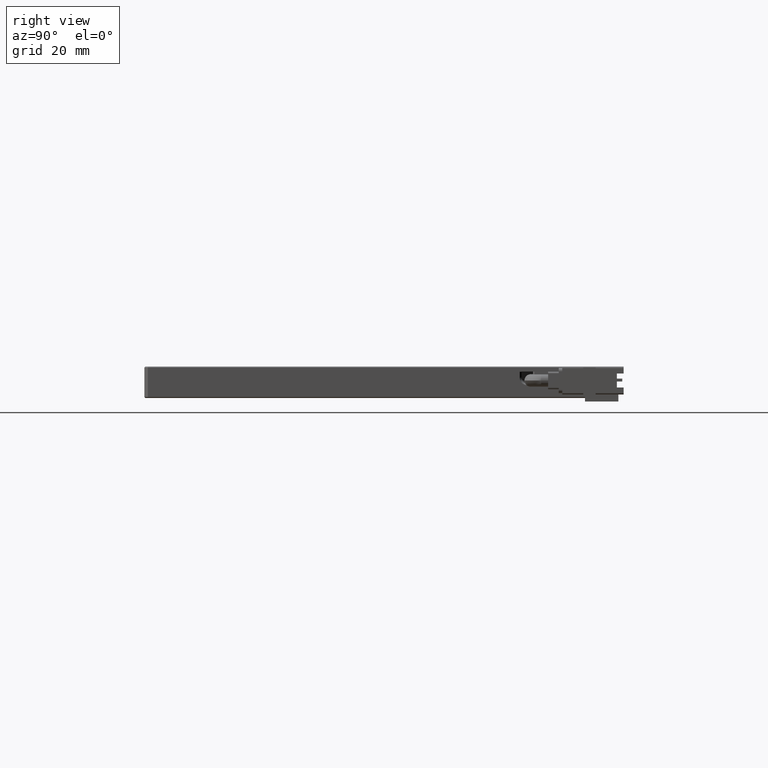
[diagram: clean part render]
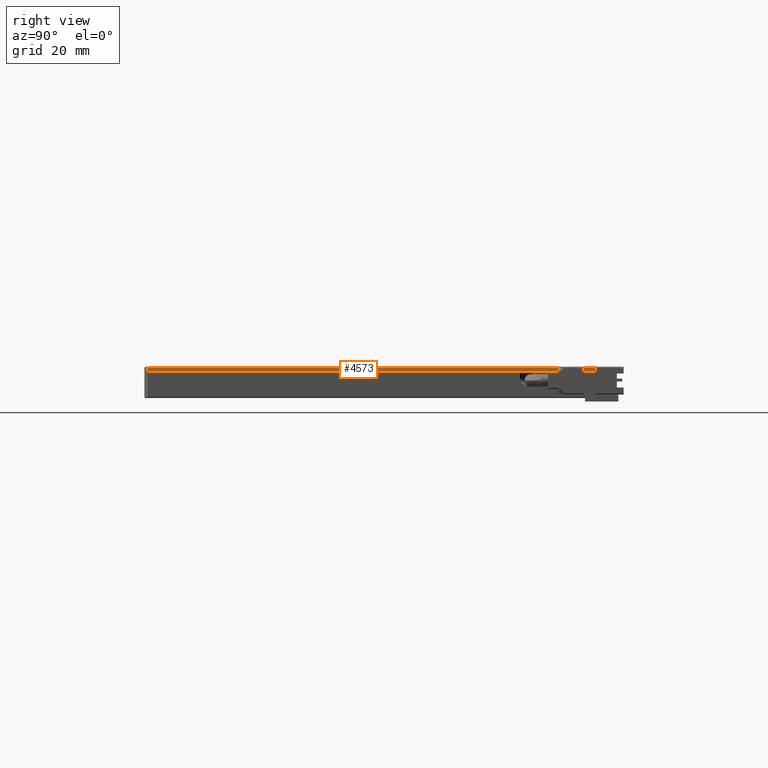
[diagram: same view with one face highlighted and labeled with its STEP entity id]
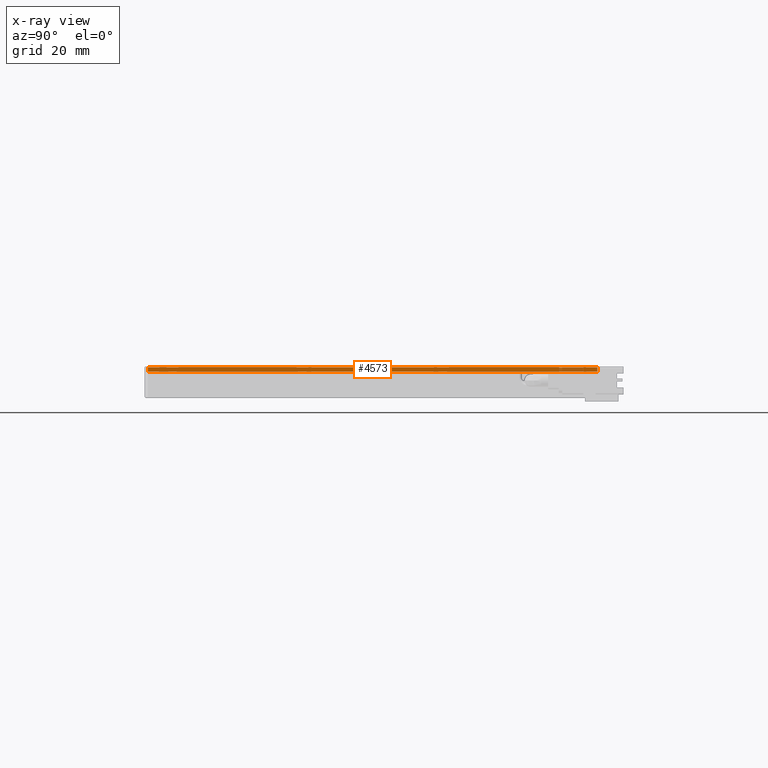
[diagram: x-ray of the same camera — body ghosted, the highlighted face saturated]
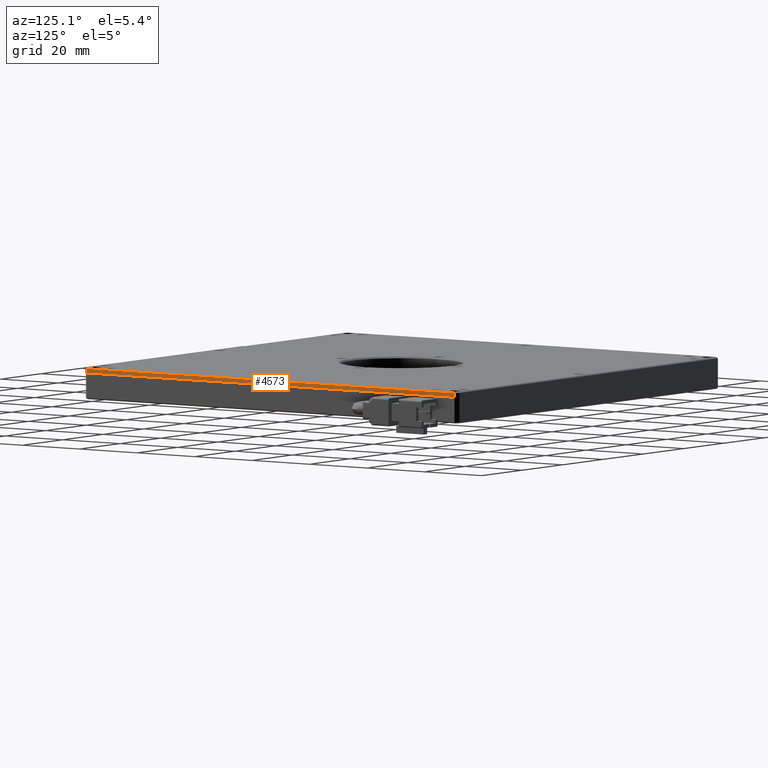
[diagram: same view with one face highlighted and labeled with its STEP entity id]
A machine part, right view. The second image highlights one B-rep face of the part: STEP entity #4573.
The next image is the same camera in x-ray: the body ghosted, the highlighted face saturated — about 6% of this face is hidden behind the body in this view.
A second angle (auxiliary view) of the same face is appended — the face is thin or edge-on in the first view.
In plain terms, the highlighted planar face has unit normal (-1, 0, 0).
Its self-contained STEP definition (entity closure, byte-faithful):
#678 = FACE_OUTER_BOUND ( 'NONE', #7213, .T. ) ;
#1564 = VECTOR ( 'NONE', #17438, 1000.000000000000000 ) ;
#2727 = VERTEX_POINT ( 'NONE', #17500 ) ;
#2897 = DIRECTION ( 'NONE',  ( -0.0000000000000000000, -0.0000000000000000000, -1.000000000000000000 ) ) ;
#3177 = CARTESIAN_POINT ( 'NONE',  ( 91.12907407407409700, 89.05944444444446600, 4.500000000000000900 ) ) ;
#3442 = CARTESIAN_POINT ( 'NONE',  ( 91.12907407407409700, -39.94055555555552700, 6.000000000000000000 ) ) ;
#4573 = ADVANCED_FACE ( 'NONE', ( #678 ), #6789, .F. ) ;
#4774 = EDGE_CURVE ( 'NONE', #13783, #12410, #18614, .T. ) ;
#5455 = ORIENTED_EDGE ( 'NONE', *, *, #12437, .F. ) ;
#5976 = AXIS2_PLACEMENT_3D ( 'NONE', #13085, #19373, #14516 ) ;
#6627 = CARTESIAN_POINT ( 'NONE',  ( 91.12907407407409700, -40.94055555555552700, 5.699999999999978000 ) ) ;
#6703 = VERTEX_POINT ( 'NONE', #8935 ) ;
#6789 = PLANE ( 'NONE',  #5976 ) ;
#7213 = EDGE_LOOP ( 'NONE', ( #11289, #15396, #5455, #14622 ) ) ;
#7312 = LINE ( 'NONE', #10909, #17368 ) ;
#8935 = CARTESIAN_POINT ( 'NONE',  ( 91.12907407407409700, 88.05944444444449500, 4.500000000000000000 ) ) ;
#9059 = EDGE_CURVE ( 'NONE', #12410, #6703, #7312, .T. ) ;
#9808 = EDGE_CURVE ( 'NONE', #13783, #2727, #13850, .T. ) ;
#10909 = CARTESIAN_POINT ( 'NONE',  ( 91.12907407407409700, 88.05944444444449500, 6.000000000000000000 ) ) ;
#11289 = ORIENTED_EDGE ( 'NONE', *, *, #4774, .F. ) ;
#12410 = VERTEX_POINT ( 'NONE', #20188 ) ;
#12437 = EDGE_CURVE ( 'NONE', #6703, #2727, #19798, .T. ) ;
#13085 = CARTESIAN_POINT ( 'NONE',  ( 91.12907407407409700, -40.94055555555552700, 6.000000000000000000 ) ) ;
#13666 = VECTOR ( 'NONE', #20253, 1000.000000000000000 ) ;
#13783 = VERTEX_POINT ( 'NONE', #14193 ) ;
#13850 = LINE ( 'NONE', #3442, #1564 ) ;
#14193 = CARTESIAN_POINT ( 'NONE',  ( 91.12907407407409700, -39.94055555555552000, 5.699999999999980600 ) ) ;
#14516 = DIRECTION ( 'NONE',  ( 0.0000000000000000000, 0.0000000000000000000, 1.000000000000000000 ) ) ;
#14622 = ORIENTED_EDGE ( 'NONE', *, *, #9059, .F. ) ;
#15396 = ORIENTED_EDGE ( 'NONE', *, *, #9808, .T. ) ;
#17368 = VECTOR ( 'NONE', #2897, 1000.000000000000000 ) ;
#17438 = DIRECTION ( 'NONE',  ( -0.0000000000000000000, -0.0000000000000000000, -1.000000000000000000 ) ) ;
#17500 = CARTESIAN_POINT ( 'NONE',  ( 91.12907407407409700, -39.94055555555553400, 4.500000000000000900 ) ) ;
#17655 = DIRECTION ( 'NONE',  ( 0.0000000000000000000, 1.000000000000000000, -0.0000000000000000000 ) ) ;
#18614 = LINE ( 'NONE', #6627, #19593 ) ;
#19373 = DIRECTION ( 'NONE',  ( -1.000000000000000000, 0.0000000000000000000, 0.0000000000000000000 ) ) ;
#19593 = VECTOR ( 'NONE', #17655, 1000.000000000000000 ) ;
#19798 = LINE ( 'NONE', #3177, #13666 ) ;
#20188 = CARTESIAN_POINT ( 'NONE',  ( 91.12907407407409700, 88.05944444444446600, 5.699999999999989500 ) ) ;
#20253 = DIRECTION ( 'NONE',  ( -0.0000000000000000000, -1.000000000000000000, -0.0000000000000000000 ) ) ;